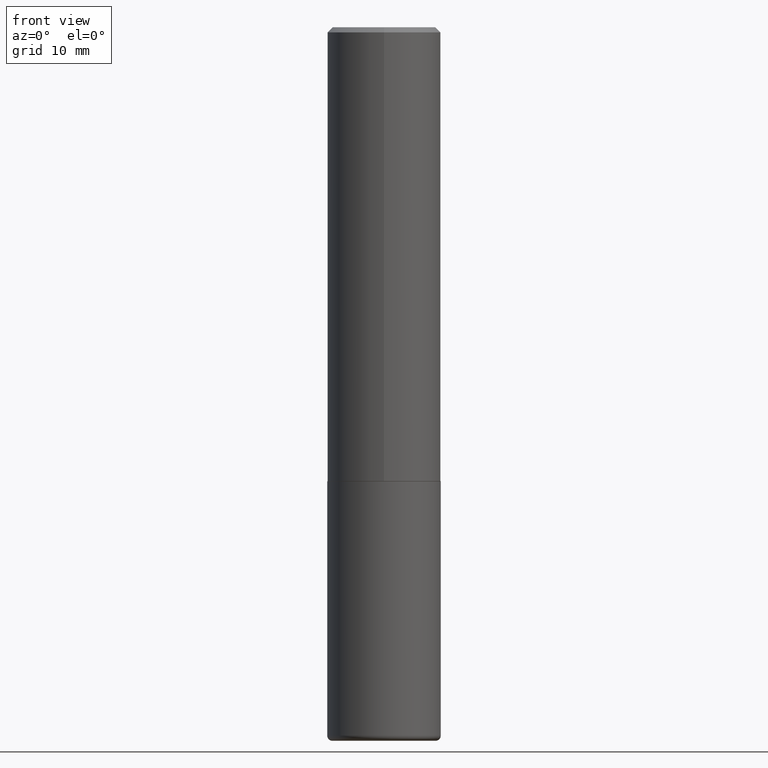
[diagram: clean part render]
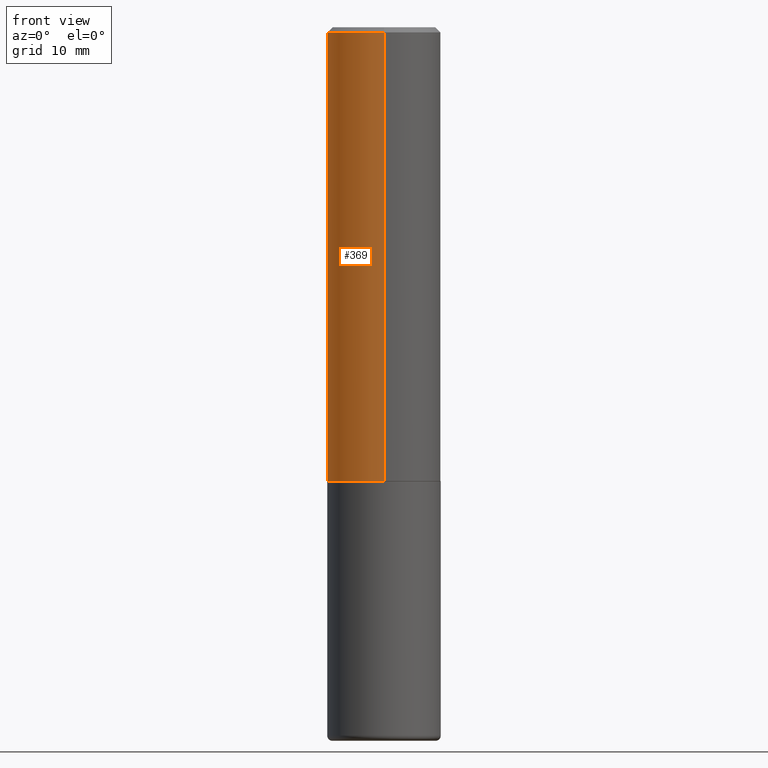
[diagram: same view with one face highlighted and labeled with its STEP entity id]
A machine part, front view. The second image highlights one B-rep face of the part: STEP entity #369.
In plain terms, the highlighted cylindrical surface (partial cylindrical patch) has radius 5.5563 mm, axis along (-0, 0, 1).
Its self-contained STEP definition (entity closure, byte-faithful):
#4 = DIRECTION ( 'NONE',  ( -6.982962677686265922E-15, -1.000000000000000000, 3.746534391310985612E-15 ) ) ;
#11 = CARTESIAN_POINT ( 'NONE',  ( 1.527523085743871237E-15, 0.2187499999999999445, -0.02000000000000081574 ) ) ;
#22 = LINE ( 'NONE', #240, #297 ) ;
#39 = EDGE_CURVE ( 'NONE', #80, #271, #22, .T. ) ;
#44 = AXIS2_PLACEMENT_3D ( 'NONE', #324, #364, #261 ) ;
#60 = DIRECTION ( 'NONE',  ( -2.445702576359043151E-29, 3.491146566648739573E-15, 1.000000000000000000 ) ) ;
#62 = DIRECTION ( 'NONE',  ( -2.445702576359043151E-29, 3.491146566648739573E-15, 1.000000000000000000 ) ) ;
#64 = VERTEX_POINT ( 'NONE', #268 ) ;
#65 = CARTESIAN_POINT ( 'NONE',  ( -1.527523085743829428E-15, -0.2187500000000063283, -1.748999999999999000 ) ) ;
#80 = VERTEX_POINT ( 'NONE', #145 ) ;
#83 = EDGE_CURVE ( 'NONE', #105, #64, #340, .T. ) ;
#105 = VERTEX_POINT ( 'NONE', #65 ) ;
#117 = ORIENTED_EDGE ( 'NONE', *, *, #83, .T. ) ;
#128 = CARTESIAN_POINT ( 'NONE',  ( 4.277533806051965886E-29, -6.106015345068644919E-15, -1.748999999999999888 ) ) ;
#145 = CARTESIAN_POINT ( 'NONE',  ( 1.554312234475241639E-15, 0.2187499999999941158, -1.749000000000000554 ) ) ;
#173 = VECTOR ( 'NONE', #62, 39.37007874015748143 ) ;
#177 = ORIENTED_EDGE ( 'NONE', *, *, #39, .F. ) ;
#183 = EDGE_CURVE ( 'NONE', #271, #64, #201, .T. ) ;
#201 = CIRCLE ( 'NONE', #301, 0.2187500000000000278 ) ;
#228 = FACE_OUTER_BOUND ( 'NONE', #294, .T. ) ;
#240 = CARTESIAN_POINT ( 'NONE',  ( 1.554312234475219748E-15, 0.2187500000000001388, -7.636883114544122006E-16 ) ) ;
#249 = EDGE_CURVE ( 'NONE', #80, #105, #258, .T. ) ;
#255 = ORIENTED_EDGE ( 'NONE', *, *, #249, .T. ) ;
#258 = CIRCLE ( 'NONE', #416, 0.2187500000000002220 ) ;
#261 = DIRECTION ( 'NONE',  ( -6.982962677686265133E-15, -1.000000000000000000, 3.491146566648739178E-15 ) ) ;
#268 = CARTESIAN_POINT ( 'NONE',  ( -1.500733937012521938E-15, -0.2187500000000000833, -0.01999999999999928571 ) ) ;
#271 = VERTEX_POINT ( 'NONE', #11 ) ;
#285 = DIRECTION ( 'NONE',  ( -2.445702576359043151E-29, 3.491146566648739573E-15, 1.000000000000000000 ) ) ;
#294 = EDGE_LOOP ( 'NONE', ( #177, #255, #117, #406 ) ) ;
#297 = VECTOR ( 'NONE', #60, 39.37007874015748143 ) ;
#301 = AXIS2_PLACEMENT_3D ( 'NONE', #344, #312, #356 ) ;
#312 = DIRECTION ( 'NONE',  ( -2.445702576359043151E-29, 3.491146566648739573E-15, 1.000000000000000000 ) ) ;
#324 = CARTESIAN_POINT ( 'NONE',  ( 0.000000000000000000, 0.000000000000000000, 0.000000000000000000 ) ) ;
#340 = LINE ( 'NONE', #374, #173 ) ;
#344 = CARTESIAN_POINT ( 'NONE',  ( 4.891405152718098913E-31, -6.982293133297496204E-17, -0.02000000000000005246 ) ) ;
#356 = DIRECTION ( 'NONE',  ( -6.982962677686265922E-15, -1.000000000000000000, 3.492862791899307676E-15 ) ) ;
#360 = CYLINDRICAL_SURFACE ( 'NONE', #44, 0.2187500000000001388 ) ;
#364 = DIRECTION ( 'NONE',  ( -2.445702576359043151E-29, 3.491146566648739573E-15, 1.000000000000000000 ) ) ;
#369 = ADVANCED_FACE ( 'NONE', ( #228 ), #360, .T. ) ;
#374 = CARTESIAN_POINT ( 'NONE',  ( -1.527523085743871435E-15, -0.2187500000000001388, 7.636883114544122006E-16 ) ) ;
#406 = ORIENTED_EDGE ( 'NONE', *, *, #183, .F. ) ;
#416 = AXIS2_PLACEMENT_3D ( 'NONE', #128, #285, #4 ) ;